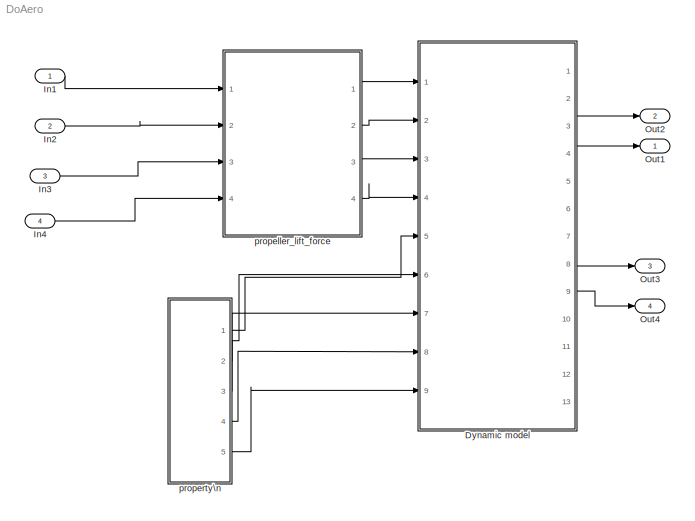
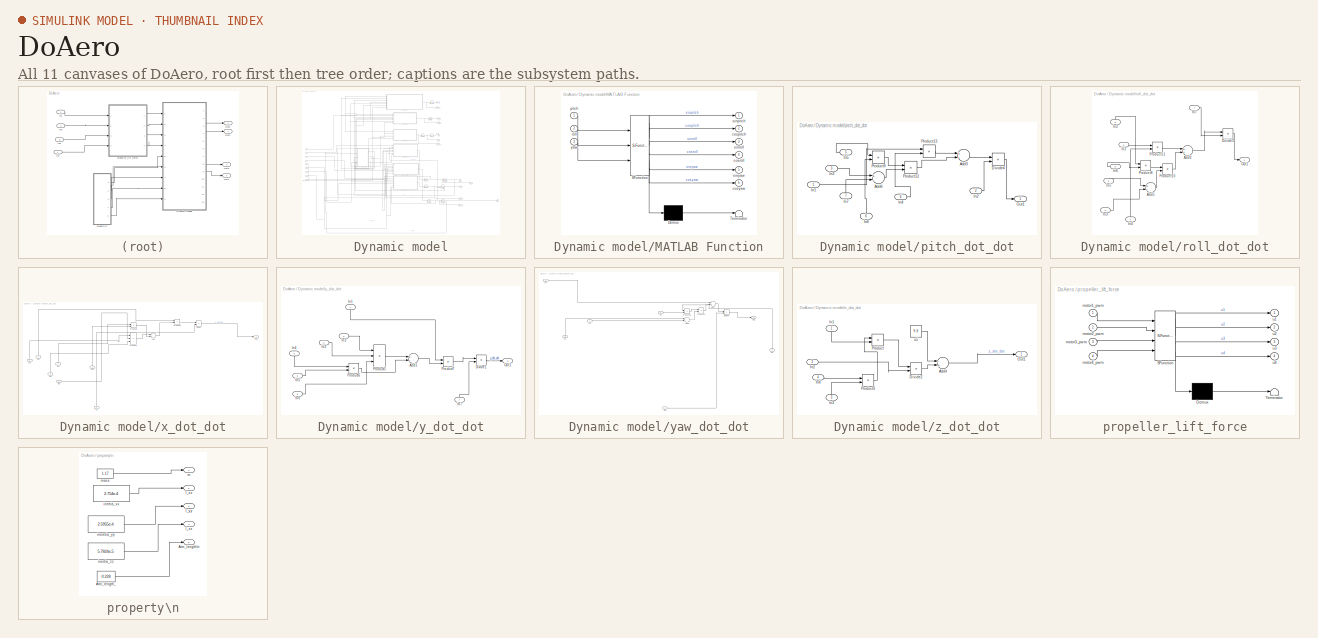
[diagram: thumbnail index - all 11 canvases of the model, root first then tree order]
MODEL DoAero
KIND model
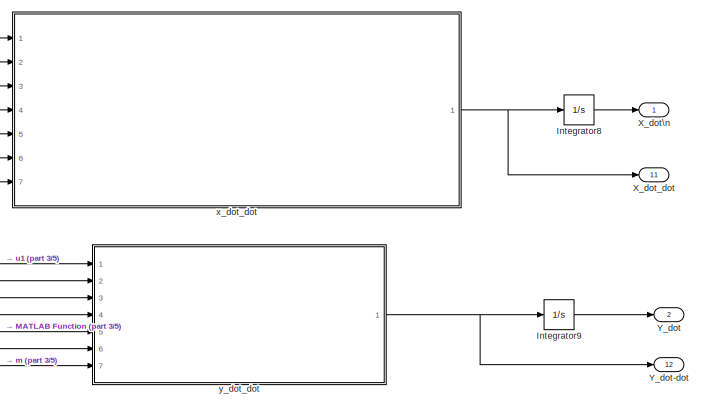
[diagram: Dynamic model - part 1/5, top center region]
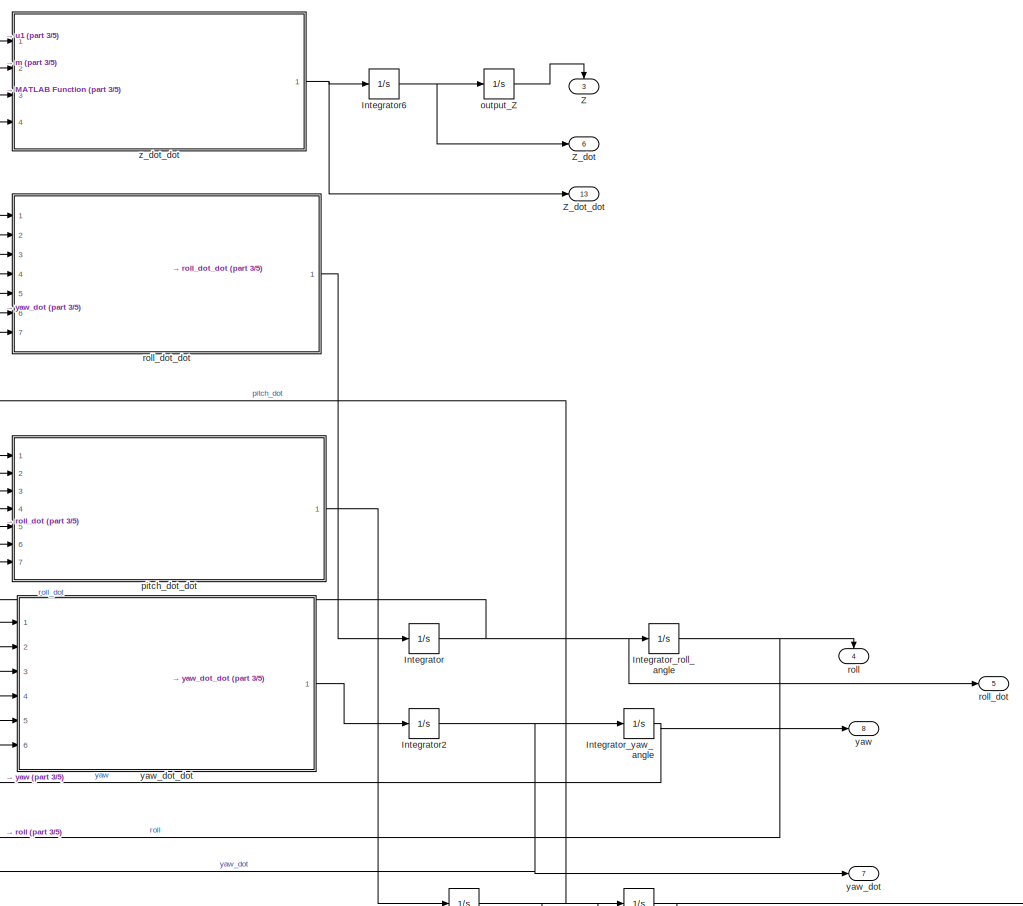
[diagram: Dynamic model - part 2/5, central region]
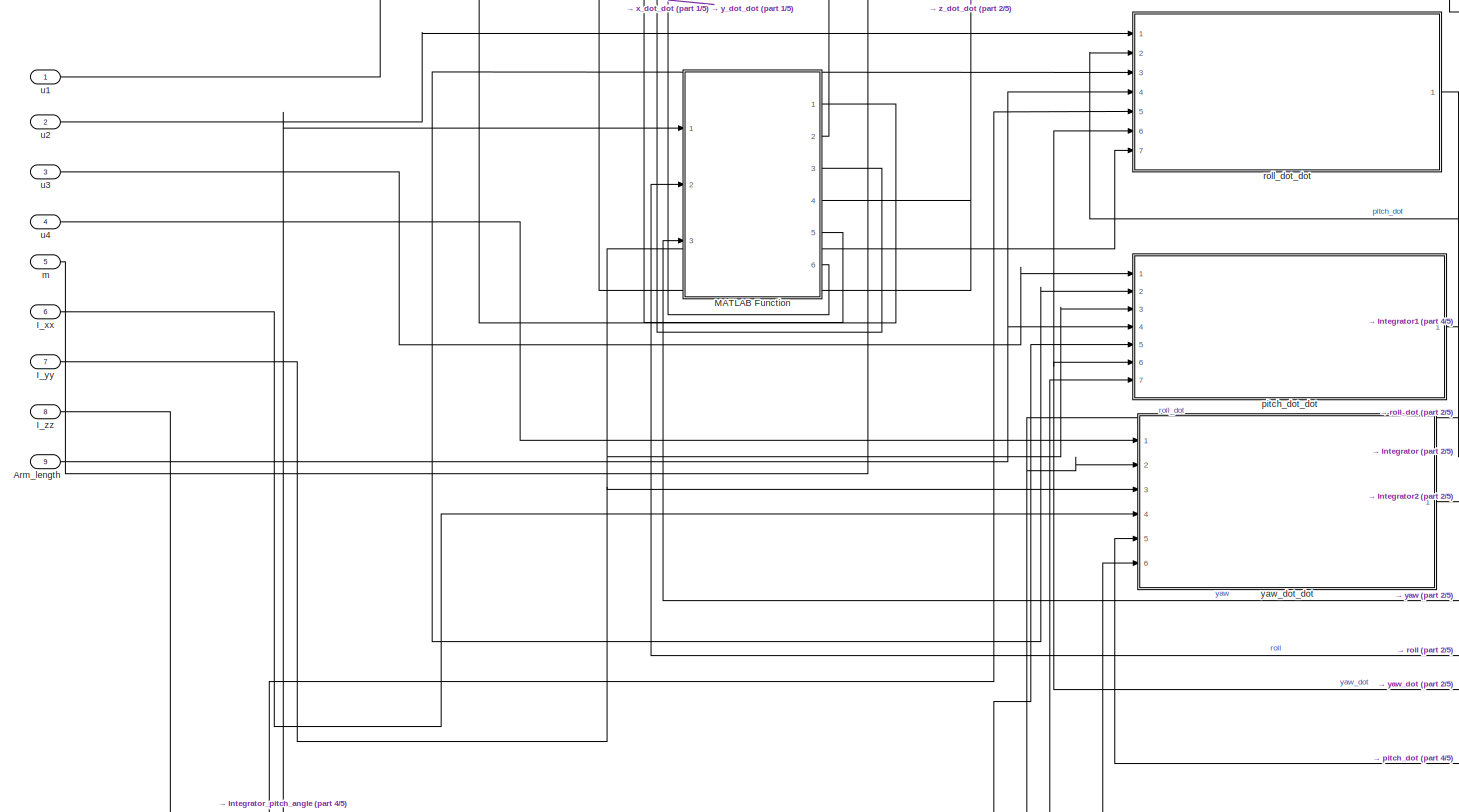
[diagram: Dynamic model - part 3/5, middle left region]
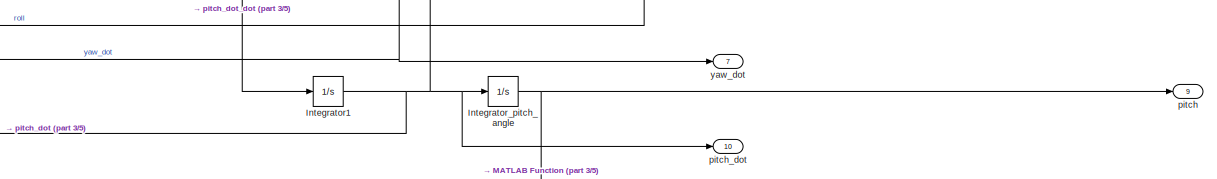
[diagram: Dynamic model - part 4/5, bottom right region]
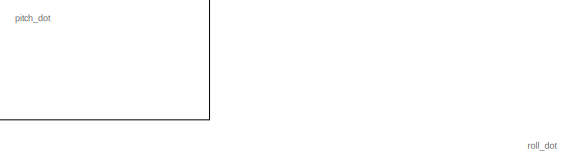
[diagram: Dynamic model - part 5/5, bottom center region]
BLOCK [SubSystem] Dynamic model
  Ports = [9, 13]
  RequestExecContextInheritance = off
  SID = 416
BLOCK [Inport] Dynamic model/Arm_length
  IconDisplay = Port number
  Port = 9
  SID = 425
BLOCK [Inport] Dynamic model/I_xx
  IconDisplay = Port number
  Port = 6
  SID = 422
BLOCK [Inport] Dynamic model/I_yy
  IconDisplay = Port number
  Port = 7
  SID = 423
BLOCK [Inport] Dynamic model/I_zz
  IconDisplay = Port number
  Port = 8
  SID = 424
BLOCK [Integrator] Dynamic model/Integrator
  Ports = [1, 1]
  SID = 182
BLOCK [Integrator] Dynamic model/Integrator1
  Ports = [1, 1]
  SID = 183
BLOCK [Integrator] Dynamic model/Integrator2
  Ports = [1, 1]
  SID = 184
BLOCK [Integrator] Dynamic model/Integrator6
  Ports = [1, 1]
  SID = 188
BLOCK [Integrator] Dynamic model/Integrator8
  Ports = [1, 1]
  SID = 190
BLOCK [Integrator] Dynamic model/Integrator9
  Ports = [1, 1]
  SID = 191
BLOCK [Integrator] Dynamic model/Integrator_pitch_angle
  Ports = [1, 1]
  SID = 186
BLOCK [Integrator] Dynamic model/Integrator_roll_angle
  Ports = [1, 1]
  SID = 185
BLOCK [Integrator] Dynamic model/Integrator_yaw_angle
  Ports = [1, 1]
  SID = 187
BLOCK [SubSystem] Dynamic model/MATLAB Function
  ErrorFcn = Stateflow.Translate.translate
  PermitHierarchicalResolution = ExplicitOnly
  Ports = [3, 6]
  RequestExecContextInheritance = off
  SFBlockType = MATLAB Function
  SID = 192
  TreatAsAtomicUnit = on
BLOCK [Demux] Dynamic model/MATLAB Function/ Demux 
  Outputs = 1
  Ports = [1, 1]
  SID = 192::17
BLOCK [S-Function] Dynamic model/MATLAB Function/ SFunction 
  EnableBusSupport = on
  FunctionName = sf_sfun
  PortCounts = [3 7]
  Ports = [3, 7]
  SID = 192::16
  Tag = Stateflow S-Function DoAero 8
BLOCK [Terminator] Dynamic model/MATLAB Function/ Terminator 
  SID = 192::18
BLOCK [Outport] Dynamic model/MATLAB Function/cospitch
  IconDisplay = Port number
  Port = 2
  SID = 192::21
BLOCK [Outport] Dynamic model/MATLAB Function/cosroll
  IconDisplay = Port number
  Port = 4
  SID = 192::23
BLOCK [Outport] Dynamic model/MATLAB Function/cosyaw
  IconDisplay = Port number
  Port = 6
  SID = 192::25
BLOCK [Inport] Dynamic model/MATLAB Function/pitch
  IconDisplay = Port number
  SID = 192::1
BLOCK [Inport] Dynamic model/MATLAB Function/roll
  IconDisplay = Port number
  Port = 2
  SID = 192::19
BLOCK [Outport] Dynamic model/MATLAB Function/sinpitch
  IconDisplay = Port number
  SID = 192::5
BLOCK [Outport] Dynamic model/MATLAB Function/sinroll
  IconDisplay = Port number
  Port = 3
  SID = 192::22
BLOCK [Outport] Dynamic model/MATLAB Function/sinyaw
  IconDisplay = Port number
  Port = 5
  SID = 192::24
BLOCK [Inport] Dynamic model/MATLAB Function/yaw
  IconDisplay = Port number
  Port = 3
  SID = 192::20
BLOCK [Outport] Dynamic model/X_dot\n
  IconDisplay = Port number
  SID = 426
BLOCK [Outport] Dynamic model/X_dot_dot
  IconDisplay = Port number
  Port = 11
  SID = 930
BLOCK [Outport] Dynamic model/Y_dot
  IconDisplay = Port number
  Port = 2
  SID = 427
BLOCK [Outport] Dynamic model/Y_dot-dot
  IconDisplay = Port number
  Port = 12
  SID = 931
BLOCK [Outport] Dynamic model/Z
  IconDisplay = Port number
  Port = 3
  SID = 428
BLOCK [Outport] Dynamic model/Z_dot
  IconDisplay = Port number
  Port = 6
  SID = 431
BLOCK [Outport] Dynamic model/Z_dot_dot
  IconDisplay = Port number
  Port = 13
  SID = 932
BLOCK [Inport] Dynamic model/m
  IconDisplay = Port number
  Port = 5
  SID = 421
BLOCK [Integrator] Dynamic model/output_Z
  Ports = [1, 1]
  SID = 189
BLOCK [Outport] Dynamic model/pitch
  IconDisplay = Port number
  Port = 9
  SID = 434
BLOCK [Outport] Dynamic model/pitch_dot
  IconDisplay = Port number
  Port = 10
  SID = 435
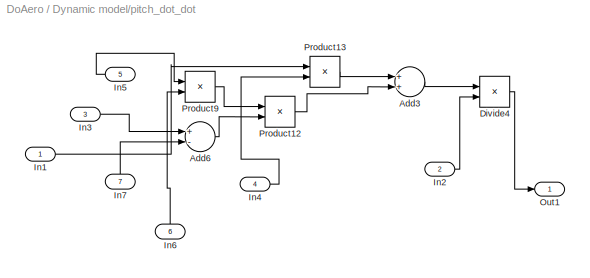
BLOCK [SubSystem] Dynamic model/pitch_dot_dot
  Ports = [7, 1]
  RequestExecContextInheritance = off
  SID = 356
BLOCK [Sum] Dynamic model/pitch_dot_dot/Add3
  InputSameDT = off
  OutDataTypeStr = Inherit: Inherit via internal rule
  Ports = [2, 1]
  SID = 201
  SaturateOnIntegerOverflow = off
BLOCK [Sum] Dynamic model/pitch_dot_dot/Add6
  InputSameDT = off
  Inputs = +-
  OutDataTypeStr = Inherit: Inherit via internal rule
  Ports = [2, 1]
  SID = 202
  SaturateOnIntegerOverflow = off
BLOCK [Product] Dynamic model/pitch_dot_dot/Divide4
  InputSameDT = off
  Inputs = */
  OutDataTypeStr = Inherit: Inherit via internal rule
  Ports = [2, 1]
  RndMeth = Floor
  SID = 203
  SaturateOnIntegerOverflow = off
BLOCK [Inport] Dynamic model/pitch_dot_dot/In1
  IconDisplay = Port number
  SID = 357
BLOCK [Inport] Dynamic model/pitch_dot_dot/In2
  IconDisplay = Port number
  Port = 2
  SID = 358
BLOCK [Inport] Dynamic model/pitch_dot_dot/In3
  IconDisplay = Port number
  Port = 3
  SID = 359
BLOCK [Inport] Dynamic model/pitch_dot_dot/In4
  IconDisplay = Port number
  Port = 4
  SID = 360
BLOCK [Inport] Dynamic model/pitch_dot_dot/In5
  IconDisplay = Port number
  Port = 5
  SID = 361
BLOCK [Inport] Dynamic model/pitch_dot_dot/In6
  IconDisplay = Port number
  Port = 6
  SID = 362
BLOCK [Inport] Dynamic model/pitch_dot_dot/In7
  IconDisplay = Port number
  Port = 7
  SID = 363
BLOCK [Outport] Dynamic model/pitch_dot_dot/Out1
  IconDisplay = Port number
  SID = 364
BLOCK [Product] Dynamic model/pitch_dot_dot/Product12
  InputSameDT = off
  OutDataTypeStr = Inherit: Inherit via internal rule
  Ports = [2, 1]
  RndMeth = Floor
  SID = 204
  SaturateOnIntegerOverflow = off
BLOCK [Product] Dynamic model/pitch_dot_dot/Product13
  InputSameDT = off
  OutDataTypeStr = Inherit: Inherit via internal rule
  Ports = [2, 1]
  RndMeth = Floor
  SID = 205
  SaturateOnIntegerOverflow = off
BLOCK [Product] Dynamic model/pitch_dot_dot/Product9
  InputSameDT = off
  OutDataTypeStr = Inherit: Inherit via internal rule
  Ports = [2, 1]
  RndMeth = Floor
  SID = 206
  SaturateOnIntegerOverflow = off
BLOCK [Outport] Dynamic model/roll
  IconDisplay = Port number
  Port = 4
  SID = 429
BLOCK [Outport] Dynamic model/roll_dot
  IconDisplay = Port number
  Port = 5
  SID = 430
BLOCK [SubSystem] Dynamic model/roll_dot_dot
  Ports = [7, 1]
  RequestExecContextInheritance = off
  SID = 337
BLOCK [Sum] Dynamic model/roll_dot_dot/Add2
  InputSameDT = off
  OutDataTypeStr = Inherit: Inherit via internal rule
  Ports = [2, 1]
  SID = 216
  SaturateOnIntegerOverflow = off
BLOCK [Sum] Dynamic model/roll_dot_dot/Add5
  InputSameDT = off
  Inputs = +-
  OutDataTypeStr = Inherit: Inherit via internal rule
  Ports = [2, 1]
  SID = 217
  SaturateOnIntegerOverflow = off
BLOCK [Product] Dynamic model/roll_dot_dot/Divide3
  InputSameDT = off
  Inputs = */
  OutDataTypeStr = Inherit: Inherit via internal rule
  Ports = [2, 1]
  RndMeth = Floor
  SID = 218
  SaturateOnIntegerOverflow = off
BLOCK [Inport] Dynamic model/roll_dot_dot/In1
  IconDisplay = Port number
  SID = 338
BLOCK [Inport] Dynamic model/roll_dot_dot/In2
  IconDisplay = Port number
  Port = 2
  SID = 339
BLOCK [Inport] Dynamic model/roll_dot_dot/In3
  IconDisplay = Port number
  Port = 3
  SID = 340
BLOCK [Inport] Dynamic model/roll_dot_dot/In4
  IconDisplay = Port number
  Port = 4
  SID = 341
BLOCK [Inport] Dynamic model/roll_dot_dot/In5
  IconDisplay = Port number
  Port = 5
  SID = 342
BLOCK [Inport] Dynamic model/roll_dot_dot/In6
  IconDisplay = Port number
  Port = 6
  SID = 343
BLOCK [Inport] Dynamic model/roll_dot_dot/In7
  IconDisplay = Port number
  Port = 7
  SID = 344
BLOCK [Outport] Dynamic model/roll_dot_dot/Out1
  IconDisplay = Port number
  SID = 345
BLOCK [Product] Dynamic model/roll_dot_dot/Product10
  InputSameDT = off
  OutDataTypeStr = Inherit: Inherit via internal rule
  Ports = [2, 1]
  RndMeth = Floor
  SID = 219
  SaturateOnIntegerOverflow = off
BLOCK [Product] Dynamic model/roll_dot_dot/Product11
  InputSameDT = off
  OutDataTypeStr = Inherit: Inherit via internal rule
  Ports = [2, 1]
  RndMeth = Floor
  SID = 220
  SaturateOnIntegerOverflow = off
BLOCK [Product] Dynamic model/roll_dot_dot/Product8
  InputSameDT = off
  OutDataTypeStr = Inherit: Inherit via internal rule
  Ports = [2, 1]
  RndMeth = Floor
  SID = 221
  SaturateOnIntegerOverflow = off
BLOCK [Inport] Dynamic model/u1
  IconDisplay = Port number
  SID = 417
BLOCK [Inport] Dynamic model/u2
  IconDisplay = Port number
  Port = 2
  SID = 418
BLOCK [Inport] Dynamic model/u3
  IconDisplay = Port number
  Port = 3
  SID = 419
BLOCK [Inport] Dynamic model/u4
  IconDisplay = Port number
  Port = 4
  SID = 420
BLOCK [SubSystem] Dynamic model/x_dot_dot
  Ports = [7, 1]
  RequestExecContextInheritance = off
  SID = 391
BLOCK [Sum] Dynamic model/x_dot_dot/Add
  InputSameDT = off
  OutDataTypeStr = Inherit: Inherit via internal rule
  Ports = [2, 1]
  SID = 231
  SaturateOnIntegerOverflow = off
BLOCK [Product] Dynamic model/x_dot_dot/Divide
  InputSameDT = off
  Inputs = */
  OutDataTypeStr = Inherit: Inherit via internal rule
  Ports = [2, 1]
  RndMeth = Floor
  SID = 232
  SaturateOnIntegerOverflow = off
BLOCK [Inport] Dynamic model/x_dot_dot/In1
  IconDisplay = Port number
  SID = 392
BLOCK [Inport] Dynamic model/x_dot_dot/In2
  IconDisplay = Port number
  Port = 2
  SID = 393
BLOCK [Inport] Dynamic model/x_dot_dot/In3
  IconDisplay = Port number
  Port = 3
  SID = 394
BLOCK [Inport] Dynamic model/x_dot_dot/In4
  IconDisplay = Port number
  Port = 4
  SID = 395
BLOCK [Inport] Dynamic model/x_dot_dot/In5
  IconDisplay = Port number
  Port = 5
  SID = 396
BLOCK [Inport] Dynamic model/x_dot_dot/In6
  IconDisplay = Port number
  Port = 6
  SID = 397
BLOCK [Inport] Dynamic model/x_dot_dot/In7
  IconDisplay = Port number
  Port = 7
  SID = 398
BLOCK [Outport] Dynamic model/x_dot_dot/Out1
  IconDisplay = Port number
  SID = 399
BLOCK [Product] Dynamic model/x_dot_dot/Product1
  InputSameDT = off
  Inputs = 3
  OutDataTypeStr = Inherit: Inherit via internal rule
  Ports = [3, 1]
  RndMeth = Floor
  SID = 233
  SaturateOnIntegerOverflow = off
BLOCK [Product] Dynamic model/x_dot_dot/Product2
  InputSameDT = off
  OutDataTypeStr = Inherit: Inherit via internal rule
  Ports = [2, 1]
  RndMeth = Floor
  SID = 234
  SaturateOnIntegerOverflow = off
BLOCK [Product] Dynamic model/x_dot_dot/Product3
  InputSameDT = off
  OutDataTypeStr = Inherit: Inherit via internal rule
  Ports = [2, 1]
  RndMeth = Floor
  SID = 235
  SaturateOnIntegerOverflow = off
BLOCK [SubSystem] Dynamic model/y_dot_dot
  Ports = [7, 1]
  RequestExecContextInheritance = off
  SID = 320
BLOCK [Sum] Dynamic model/y_dot_dot/Add1
  InputSameDT = off
  Inputs = +-
  OutDataTypeStr = Inherit: Inherit via internal rule
  Ports = [2, 1]
  SID = 245
  SaturateOnIntegerOverflow = off
BLOCK [Product] Dynamic model/y_dot_dot/Divide1
  InputSameDT = off
  Inputs = */
  OutDataTypeStr = Inherit: Inherit via internal rule
  Ports = [2, 1]
  RndMeth = Floor
  SID = 246
  SaturateOnIntegerOverflow = off
BLOCK [Inport] Dynamic model/y_dot_dot/In1
  IconDisplay = Port number
  SID = 321
BLOCK [Inport] Dynamic model/y_dot_dot/In2
  IconDisplay = Port number
  Port = 2
  SID = 322
BLOCK [Inport] Dynamic model/y_dot_dot/In3
  IconDisplay = Port number
  Port = 3
  SID = 323
BLOCK [Inport] Dynamic model/y_dot_dot/In4
  IconDisplay = Port number
  Port = 4
  SID = 324
BLOCK [Inport] Dynamic model/y_dot_dot/In5
  IconDisplay = Port number
  Port = 5
  SID = 325
BLOCK [Inport] Dynamic model/y_dot_dot/In6
  IconDisplay = Port number
  Port = 6
  SID = 326
BLOCK [Inport] Dynamic model/y_dot_dot/In7
  IconDisplay = Port number
  Port = 7
  SID = 327
BLOCK [Outport] Dynamic model/y_dot_dot/Out1
  IconDisplay = Port number
  SID = 328
BLOCK [Product] Dynamic model/y_dot_dot/Product5
  InputSameDT = off
  Inputs = 3
  OutDataTypeStr = Inherit: Inherit via internal rule
  Ports = [3, 1]
  RndMeth = Floor
  SID = 247
  SaturateOnIntegerOverflow = off
BLOCK [Product] Dynamic model/y_dot_dot/Product6
  InputSameDT = off
  OutDataTypeStr = Inherit: Inherit via internal rule
  Ports = [2, 1]
  RndMeth = Floor
  SID = 248
  SaturateOnIntegerOverflow = off
BLOCK [Product] Dynamic model/y_dot_dot/Product7
  InputSameDT = off
  OutDataTypeStr = Inherit: Inherit via internal rule
  Ports = [2, 1]
  RndMeth = Floor
  SID = 249
  SaturateOnIntegerOverflow = off
BLOCK [Outport] Dynamic model/yaw
  IconDisplay = Port number
  Port = 8
  SID = 433
BLOCK [Outport] Dynamic model/yaw_dot
  IconDisplay = Port number
  Port = 7
  SID = 432
BLOCK [SubSystem] Dynamic model/yaw_dot_dot
  Ports = [6, 1]
  RequestExecContextInheritance = off
  SID = 405
BLOCK [Sum] Dynamic model/yaw_dot_dot/Add7
  InputSameDT = off
  OutDataTypeStr = Inherit: Inherit via internal rule
  Ports = [2, 1]
  SID = 259
  SaturateOnIntegerOverflow = off
BLOCK [Sum] Dynamic model/yaw_dot_dot/Add8
  InputSameDT = off
  Inputs = +-
  OutDataTypeStr = Inherit: Inherit via internal rule
  Ports = [2, 1]
  SID = 260
  SaturateOnIntegerOverflow = off
BLOCK [Product] Dynamic model/yaw_dot_dot/Divide5
  InputSameDT = off
  Inputs = */
  OutDataTypeStr = Inherit: Inherit via internal rule
  Ports = [2, 1]
  RndMeth = Floor
  SID = 261
  SaturateOnIntegerOverflow = off
BLOCK [Inport] Dynamic model/yaw_dot_dot/In1
  IconDisplay = Port number
  SID = 406
BLOCK [Inport] Dynamic model/yaw_dot_dot/In2
  IconDisplay = Port number
  Port = 2
  SID = 407
BLOCK [Inport] Dynamic model/yaw_dot_dot/In3
  IconDisplay = Port number
  Port = 3
  SID = 408
BLOCK [Inport] Dynamic model/yaw_dot_dot/In4
  IconDisplay = Port number
  Port = 4
  SID = 409
BLOCK [Inport] Dynamic model/yaw_dot_dot/In5
  IconDisplay = Port number
  Port = 5
  SID = 410
BLOCK [Inport] Dynamic model/yaw_dot_dot/In6
  IconDisplay = Port number
  Port = 6
  SID = 411
BLOCK [Outport] Dynamic model/yaw_dot_dot/Out1
  IconDisplay = Port number
  SID = 412
BLOCK [Product] Dynamic model/yaw_dot_dot/Product14
  InputSameDT = off
  OutDataTypeStr = Inherit: Inherit via internal rule
  Ports = [2, 1]
  RndMeth = Floor
  SID = 262
  SaturateOnIntegerOverflow = off
BLOCK [Product] Dynamic model/yaw_dot_dot/Product15
  InputSameDT = off
  OutDataTypeStr = Inherit: Inherit via internal rule
  Ports = [2, 1]
  RndMeth = Floor
  SID = 263
  SaturateOnIntegerOverflow = off
BLOCK [SubSystem] Dynamic model/z_dot_dot
  Ports = [4, 1]
  RequestExecContextInheritance = off
  SID = 330
BLOCK [Sum] Dynamic model/z_dot_dot/Add4
  InputSameDT = off
  Inputs = -+
  OutDataTypeStr = Inherit: Inherit via internal rule
  Ports = [2, 1]
  SID = 270
  SaturateOnIntegerOverflow = off
BLOCK [Product] Dynamic model/z_dot_dot/Divide2
  InputSameDT = off
  Inputs = */
  OutDataTypeStr = Inherit: Inherit via internal rule
  Ports = [2, 1]
  RndMeth = Floor
  SID = 271
  SaturateOnIntegerOverflow = off
BLOCK [Inport] Dynamic model/z_dot_dot/In1
  IconDisplay = Port number
  SID = 331
BLOCK [Inport] Dynamic model/z_dot_dot/In2
  IconDisplay = Port number
  Port = 2
  SID = 332
BLOCK [Inport] Dynamic model/z_dot_dot/In3
  IconDisplay = Port number
  Port = 3
  SID = 333
BLOCK [Inport] Dynamic model/z_dot_dot/In4
  IconDisplay = Port number
  Port = 4
  SID = 334
BLOCK [Outport] Dynamic model/z_dot_dot/Out1
  IconDisplay = Port number
  SID = 335
BLOCK [Product] Dynamic model/z_dot_dot/Product
  InputSameDT = off
  OutDataTypeStr = Inherit: Inherit via internal rule
  Ports = [2, 1]
  RndMeth = Floor
  SID = 272
  SaturateOnIntegerOverflow = off
BLOCK [Product] Dynamic model/z_dot_dot/Product4
  InputSameDT = off
  OutDataTypeStr = Inherit: Inherit via internal rule
  Ports = [2, 1]
  RndMeth = Floor
  SID = 273
  SaturateOnIntegerOverflow = off
BLOCK [Constant] Dynamic model/z_dot_dot/u5
  SID = 274
  Value = 9.8
BLOCK [Inport] In1
  IconDisplay = Port number
  SID = 1136
BLOCK [Inport] In2
  IconDisplay = Port number
  Port = 2
  SID = 1137
BLOCK [Inport] In3
  IconDisplay = Port number
  Port = 3
  SID = 1138
BLOCK [Inport] In4
  IconDisplay = Port number
  Port = 4
  SID = 1139
BLOCK [Outport] Out1
  IconDisplay = Port number
  SID = 1132
BLOCK [Outport] Out2
  IconDisplay = Port number
  Port = 2
  SID = 1133
BLOCK [Outport] Out3
  IconDisplay = Port number
  Port = 3
  SID = 1134
BLOCK [Outport] Out4
  IconDisplay = Port number
  Port = 4
  SID = 1135
BLOCK [SubSystem] propeller_lift_force
  ErrorFcn = Stateflow.Translate.translate
  PermitHierarchicalResolution = ExplicitOnly
  Ports = [4, 4]
  RequestExecContextInheritance = off
  SFBlockType = MATLAB Function
  SID = 1065
  TreatAsAtomicUnit = on
BLOCK [Demux] propeller_lift_force/ Demux 
  Outputs = 1
  Ports = [1, 1]
  SID = 1065::17
BLOCK [S-Function] propeller_lift_force/ SFunction 
  EnableBusSupport = on
  FunctionName = sf_sfun
  PortCounts = [4 5]
  Ports = [4, 5]
  SID = 1065::16
  Tag = Stateflow S-Function DoAero 5
BLOCK [Terminator] propeller_lift_force/ Terminator 
  SID = 1065::18
BLOCK [Inport] propeller_lift_force/motor1_pwm
  IconDisplay = Port number
  SID = 1065::1
BLOCK [Inport] propeller_lift_force/motor2_pwm
  IconDisplay = Port number
  Port = 2
  SID = 1065::19
BLOCK [Inport] propeller_lift_force/motor3_pwm
  IconDisplay = Port number
  Port = 3
  SID = 1065::20
BLOCK [Inport] propeller_lift_force/motor4_pwm
  IconDisplay = Port number
  Port = 4
  SID = 1065::21
BLOCK [Outport] propeller_lift_force/u1
  IconDisplay = Port number
  SID = 1065::5
BLOCK [Outport] propeller_lift_force/u2
  IconDisplay = Port number
  Port = 2
  SID = 1065::22
BLOCK [Outport] propeller_lift_force/u3
  IconDisplay = Port number
  Port = 3
  SID = 1065::23
BLOCK [Outport] propeller_lift_force/u4
  IconDisplay = Port number
  Port = 4
  SID = 1065::24
BLOCK [SubSystem] property\n
  Ports = [0, 5]
  RequestExecContextInheritance = off
  SID = 374
BLOCK [Outport] property\n/Arm_length\n
  IconDisplay = Port number
  Port = 5
  SID = 379
BLOCK [Constant] property\n/Arm_length_
  SID = 289
  Value = 0.228
BLOCK [Outport] property\n/I_xx
  IconDisplay = Port number
  Port = 2
  SID = 376
BLOCK [Outport] property\n/I_yy
  IconDisplay = Port number
  Port = 3
  SID = 377
BLOCK [Outport] property\n/I_zz
  IconDisplay = Port number
  Port = 4
  SID = 378
BLOCK [Constant] property\n/ineretia_yy
  SID = 290
  Value = 2.5955e-4
BLOCK [Constant] property\n/inertia_xx
  SID = 291
  Value = 2.754e-4
BLOCK [Constant] property\n/inertia_zz
  SID = 288
  Value = 5.7824e-5
BLOCK [Outport] property\n/m
  IconDisplay = Port number
  SID = 375
BLOCK [Constant] property\n/mass
  SID = 292
  Value = 1.17
ANNOTATION Dynamic model: pitch_dot
ANNOTATION Dynamic model: roll_dot
NET Dynamic model/Arm_length:1 -> Dynamic model/pitch_dot_dot:4, Dynamic model/roll_dot_dot:4
NET Dynamic model/I_xx:1 -> Dynamic model/pitch_dot_dot:2, Dynamic model/roll_dot_dot:3, Dynamic model/yaw_dot_dot:4
NET Dynamic model/I_yy:1 -> Dynamic model/pitch_dot_dot:3, Dynamic model/roll_dot_dot:7, Dynamic model/yaw_dot_dot:3
NET Dynamic model/I_zz:1 -> Dynamic model/pitch_dot_dot:7, Dynamic model/roll_dot_dot:5, Dynamic model/yaw_dot_dot:6
NET Dynamic model/Integrator1:1 -> Dynamic model/Integrator_pitch_angle:1, Dynamic model/pitch_dot:1, Dynamic model/roll_dot_dot:2, Dynamic model/yaw_dot_dot:5
NET Dynamic model/Integrator2:1 -> Dynamic model/Integrator_yaw_angle:1, Dynamic model/pitch_dot_dot:6, Dynamic model/roll_dot_dot:6, Dynamic model/yaw_dot:1
NET Dynamic model/Integrator6:1 -> Dynamic model/Z_dot:1, Dynamic model/output_Z:1
LINE Dynamic model/Integrator8:1 -> Dynamic model/X_dot\n:1
LINE Dynamic model/Integrator9:1 -> Dynamic model/Y_dot:1
NET Dynamic model/Integrator:1 -> Dynamic model/Integrator_roll_angle:1, Dynamic model/pitch_dot_dot:5, Dynamic model/roll_dot:1, Dynamic model/yaw_dot_dot:2
NET Dynamic model/Integrator_pitch_angle:1 -> Dynamic model/MATLAB Function:1, Dynamic model/pitch:1
NET Dynamic model/Integrator_roll_angle:1 -> Dynamic model/MATLAB Function:2, Dynamic model/roll:1
NET Dynamic model/Integrator_yaw_angle:1 -> Dynamic model/MATLAB Function:3, Dynamic model/yaw:1
LINE Dynamic model/MATLAB Function/ Demux :1 -> Dynamic model/MATLAB Function/ Terminator :1
LINE Dynamic model/MATLAB Function/ SFunction :1 -> Dynamic model/MATLAB Function/ Demux :1
LINE Dynamic model/MATLAB Function/ SFunction :2 -> Dynamic model/MATLAB Function/sinpitch:1
LINE Dynamic model/MATLAB Function/ SFunction :3 -> Dynamic model/MATLAB Function/cospitch:1
LINE Dynamic model/MATLAB Function/ SFunction :4 -> Dynamic model/MATLAB Function/sinroll:1
LINE Dynamic model/MATLAB Function/ SFunction :5 -> Dynamic model/MATLAB Function/cosroll:1
LINE Dynamic model/MATLAB Function/ SFunction :6 -> Dynamic model/MATLAB Function/sinyaw:1
LINE Dynamic model/MATLAB Function/ SFunction :7 -> Dynamic model/MATLAB Function/cosyaw:1
LINE Dynamic model/MATLAB Function/pitch:1 -> Dynamic model/MATLAB Function/ SFunction :1
LINE Dynamic model/MATLAB Function/roll:1 -> Dynamic model/MATLAB Function/ SFunction :2
LINE Dynamic model/MATLAB Function/yaw:1 -> Dynamic model/MATLAB Function/ SFunction :3
NET Dynamic model/MATLAB Function:1 -> Dynamic model/x_dot_dot:2, Dynamic model/y_dot_dot:2
LINE Dynamic model/MATLAB Function:2 -> Dynamic model/z_dot_dot:4
NET Dynamic model/MATLAB Function:3 -> Dynamic model/x_dot_dot:4, Dynamic model/y_dot_dot:4
NET Dynamic model/MATLAB Function:4 -> Dynamic model/x_dot_dot:5, Dynamic model/y_dot_dot:6, Dynamic model/z_dot_dot:3
NET Dynamic model/MATLAB Function:5 -> Dynamic model/x_dot_dot:3, Dynamic model/y_dot_dot:3
NET Dynamic model/MATLAB Function:6 -> Dynamic model/x_dot_dot:6, Dynamic model/y_dot_dot:5
NET Dynamic model/m:1 -> Dynamic model/x_dot_dot:7, Dynamic model/y_dot_dot:7, Dynamic model/z_dot_dot:2
LINE Dynamic model/output_Z:1 -> Dynamic model/Z:1
LINE Dynamic model/pitch_dot_dot/Add3:1 -> Dynamic model/pitch_dot_dot/Divide4:1
LINE Dynamic model/pitch_dot_dot/Add6:1 -> Dynamic model/pitch_dot_dot/Product12:2
LINE Dynamic model/pitch_dot_dot/Divide4:1 -> Dynamic model/pitch_dot_dot/Out1:1
LINE Dynamic model/pitch_dot_dot/In1:1 -> Dynamic model/pitch_dot_dot/Product13:1
LINE Dynamic model/pitch_dot_dot/In2:1 -> Dynamic model/pitch_dot_dot/Divide4:2
LINE Dynamic model/pitch_dot_dot/In3:1 -> Dynamic model/pitch_dot_dot/Add6:1
LINE Dynamic model/pitch_dot_dot/In4:1 -> Dynamic model/pitch_dot_dot/Product13:2
LINE Dynamic model/pitch_dot_dot/In5:1 -> Dynamic model/pitch_dot_dot/Product9:1
LINE Dynamic model/pitch_dot_dot/In6:1 -> Dynamic model/pitch_dot_dot/Product9:2
LINE Dynamic model/pitch_dot_dot/In7:1 -> Dynamic model/pitch_dot_dot/Add6:2
LINE Dynamic model/pitch_dot_dot/Product12:1 -> Dynamic model/pitch_dot_dot/Add3:2
LINE Dynamic model/pitch_dot_dot/Product13:1 -> Dynamic model/pitch_dot_dot/Add3:1
LINE Dynamic model/pitch_dot_dot/Product9:1 -> Dynamic model/pitch_dot_dot/Product12:1
LINE Dynamic model/pitch_dot_dot:1 -> Dynamic model/Integrator1:1
LINE Dynamic model/roll_dot_dot/Add2:1 -> Dynamic model/roll_dot_dot/Divide3:1
LINE Dynamic model/roll_dot_dot/Add5:1 -> Dynamic model/roll_dot_dot/Product10:2
LINE Dynamic model/roll_dot_dot/Divide3:1 -> Dynamic model/roll_dot_dot/Out1:1
LINE Dynamic model/roll_dot_dot/In1:1 -> Dynamic model/roll_dot_dot/Product11:1
LINE Dynamic model/roll_dot_dot/In2:1 -> Dynamic model/roll_dot_dot/Product8:1
LINE Dynamic model/roll_dot_dot/In3:1 -> Dynamic model/roll_dot_dot/Add5:2
LINE Dynamic model/roll_dot_dot/In4:1 -> Dynamic model/roll_dot_dot/Product11:2
LINE Dynamic model/roll_dot_dot/In5:1 -> Dynamic model/roll_dot_dot/Add5:1
LINE Dynamic model/roll_dot_dot/In6:1 -> Dynamic model/roll_dot_dot/Product8:2
LINE Dynamic model/roll_dot_dot/In7:1 -> Dynamic model/roll_dot_dot/Divide3:2
LINE Dynamic model/roll_dot_dot/Product10:1 -> Dynamic model/roll_dot_dot/Add2:2
LINE Dynamic model/roll_dot_dot/Product11:1 -> Dynamic model/roll_dot_dot/Add2:1
LINE Dynamic model/roll_dot_dot/Product8:1 -> Dynamic model/roll_dot_dot/Product10:1
LINE Dynamic model/roll_dot_dot:1 -> Dynamic model/Integrator:1
NET Dynamic model/u1:1 -> Dynamic model/x_dot_dot:1, Dynamic model/y_dot_dot:1, Dynamic model/z_dot_dot:1
LINE Dynamic model/u2:1 -> Dynamic model/roll_dot_dot:1
LINE Dynamic model/u3:1 -> Dynamic model/pitch_dot_dot:1
LINE Dynamic model/u4:1 -> Dynamic model/yaw_dot_dot:1
LINE Dynamic model/x_dot_dot/Add:1 -> Dynamic model/x_dot_dot/Product3:2
LINE Dynamic model/x_dot_dot/Divide:1 -> Dynamic model/x_dot_dot/Out1:1
LINE Dynamic model/x_dot_dot/In1:1 -> Dynamic model/x_dot_dot/Product3:1
LINE Dynamic model/x_dot_dot/In2:1 -> Dynamic model/x_dot_dot/Product1:1
LINE Dynamic model/x_dot_dot/In3:1 -> Dynamic model/x_dot_dot/Product2:1
LINE Dynamic model/x_dot_dot/In4:1 -> Dynamic model/x_dot_dot/Product2:2
LINE Dynamic model/x_dot_dot/In5:1 -> Dynamic model/x_dot_dot/Product1:3
LINE Dynamic model/x_dot_dot/In6:1 -> Dynamic model/x_dot_dot/Product1:2
LINE Dynamic model/x_dot_dot/In7:1 -> Dynamic model/x_dot_dot/Divide:2
LINE Dynamic model/x_dot_dot/Product1:1 -> Dynamic model/x_dot_dot/Add:1
LINE Dynamic model/x_dot_dot/Product2:1 -> Dynamic model/x_dot_dot/Add:2
LINE Dynamic model/x_dot_dot/Product3:1 -> Dynamic model/x_dot_dot/Divide:1
NET Dynamic model/x_dot_dot:1 -> Dynamic model/Integrator8:1, Dynamic model/X_dot_dot:1
LINE Dynamic model/y_dot_dot/Add1:1 -> Dynamic model/y_dot_dot/Product7:2
LINE Dynamic model/y_dot_dot/Divide1:1 -> Dynamic model/y_dot_dot/Out1:1
LINE Dynamic model/y_dot_dot/In1:1 -> Dynamic model/y_dot_dot/Product7:1
LINE Dynamic model/y_dot_dot/In2:1 -> Dynamic model/y_dot_dot/Product5:2
LINE Dynamic model/y_dot_dot/In3:1 -> Dynamic model/y_dot_dot/Product5:1
LINE Dynamic model/y_dot_dot/In4:1 -> Dynamic model/y_dot_dot/Product6:1
LINE Dynamic model/y_dot_dot/In5:1 -> Dynamic model/y_dot_dot/Product6:2
LINE Dynamic model/y_dot_dot/In6:1 -> Dynamic model/y_dot_dot/Product5:3
LINE Dynamic model/y_dot_dot/In7:1 -> Dynamic model/y_dot_dot/Divide1:2
LINE Dynamic model/y_dot_dot/Product5:1 -> Dynamic model/y_dot_dot/Add1:1
LINE Dynamic model/y_dot_dot/Product6:1 -> Dynamic model/y_dot_dot/Add1:2
LINE Dynamic model/y_dot_dot/Product7:1 -> Dynamic model/y_dot_dot/Divide1:1
NET Dynamic model/y_dot_dot:1 -> Dynamic model/Integrator9:1, Dynamic model/Y_dot-dot:1
LINE Dynamic model/yaw_dot_dot/Add7:1 -> Dynamic model/yaw_dot_dot/Divide5:1
LINE Dynamic model/yaw_dot_dot/Add8:1 -> Dynamic model/yaw_dot_dot/Product14:2
LINE Dynamic model/yaw_dot_dot/Divide5:1 -> Dynamic model/yaw_dot_dot/Out1:1
LINE Dynamic model/yaw_dot_dot/In1:1 -> Dynamic model/yaw_dot_dot/Add7:1
LINE Dynamic model/yaw_dot_dot/In2:1 -> Dynamic model/yaw_dot_dot/Product15:2
LINE Dynamic model/yaw_dot_dot/In3:1 -> Dynamic model/yaw_dot_dot/Add8:2
LINE Dynamic model/yaw_dot_dot/In4:1 -> Dynamic model/yaw_dot_dot/Add8:1
LINE Dynamic model/yaw_dot_dot/In5:1 -> Dynamic model/yaw_dot_dot/Product15:1
LINE Dynamic model/yaw_dot_dot/In6:1 -> Dynamic model/yaw_dot_dot/Divide5:2
LINE Dynamic model/yaw_dot_dot/Product14:1 -> Dynamic model/yaw_dot_dot/Add7:2
LINE Dynamic model/yaw_dot_dot/Product15:1 -> Dynamic model/yaw_dot_dot/Product14:1
LINE Dynamic model/yaw_dot_dot:1 -> Dynamic model/Integrator2:1
LINE Dynamic model/z_dot_dot/Add4:1 -> Dynamic model/z_dot_dot/Out1:1
LINE Dynamic model/z_dot_dot/Divide2:1 -> Dynamic model/z_dot_dot/Add4:2
LINE Dynamic model/z_dot_dot/In1:1 -> Dynamic model/z_dot_dot/Product:2
LINE Dynamic model/z_dot_dot/In2:1 -> Dynamic model/z_dot_dot/Divide2:2
LINE Dynamic model/z_dot_dot/In3:1 -> Dynamic model/z_dot_dot/Product4:2
LINE Dynamic model/z_dot_dot/In4:1 -> Dynamic model/z_dot_dot/Product4:1
LINE Dynamic model/z_dot_dot/Product4:1 -> Dynamic model/z_dot_dot/Product:1
LINE Dynamic model/z_dot_dot/Product:1 -> Dynamic model/z_dot_dot/Divide2:1
LINE Dynamic model/z_dot_dot/u5:1 -> Dynamic model/z_dot_dot/Add4:1
NET Dynamic model/z_dot_dot:1 -> Dynamic model/Integrator6:1, Dynamic model/Z_dot_dot:1
LINE Dynamic model:3 -> Out2:1
LINE Dynamic model:4 -> Out1:1
LINE Dynamic model:8 -> Out3:1
LINE Dynamic model:9 -> Out4:1
LINE In1:1 -> propeller_lift_force:1
LINE In2:1 -> propeller_lift_force:2
LINE In3:1 -> propeller_lift_force:3
LINE In4:1 -> propeller_lift_force:4
LINE propeller_lift_force/ Demux :1 -> propeller_lift_force/ Terminator :1
LINE propeller_lift_force/ SFunction :1 -> propeller_lift_force/ Demux :1
LINE propeller_lift_force/ SFunction :2 -> propeller_lift_force/u1:1
LINE propeller_lift_force/ SFunction :3 -> propeller_lift_force/u2:1
LINE propeller_lift_force/ SFunction :4 -> propeller_lift_force/u3:1
LINE propeller_lift_force/ SFunction :5 -> propeller_lift_force/u4:1
LINE propeller_lift_force/motor1_pwm:1 -> propeller_lift_force/ SFunction :1
LINE propeller_lift_force/motor2_pwm:1 -> propeller_lift_force/ SFunction :2
LINE propeller_lift_force/motor3_pwm:1 -> propeller_lift_force/ SFunction :3
LINE propeller_lift_force/motor4_pwm:1 -> propeller_lift_force/ SFunction :4
LINE propeller_lift_force:1 -> Dynamic model:1
LINE propeller_lift_force:2 -> Dynamic model:2
LINE propeller_lift_force:3 -> Dynamic model:3
LINE propeller_lift_force:4 -> Dynamic model:4
LINE property\n/Arm_length_:1 -> property\n/Arm_length\n:1
LINE property\n/ineretia_yy:1 -> property\n/I_yy:1
LINE property\n/inertia_xx:1 -> property\n/I_xx:1
LINE property\n/inertia_zz:1 -> property\n/I_zz:1
LINE property\n/mass:1 -> property\n/m:1
LINE property\n:1 -> Dynamic model:5
LINE property\n:2 -> Dynamic model:6
LINE property\n:3 -> Dynamic model:7
LINE property\n:4 -> Dynamic model:8
LINE property\n:5 -> Dynamic model:9
note: NET lines group one-source signal fan-out (src -> all destinations, sorted); 1:1 wires keep LINE
CHART propeller_lift_force states=1 transitions=1
  STATE_LABEL 'eML_blk_kernel()'
CHART Dynamic model/MATLAB Function states=1 transitions=1
  STATE_LABEL 'eML_blk_kernel()'
